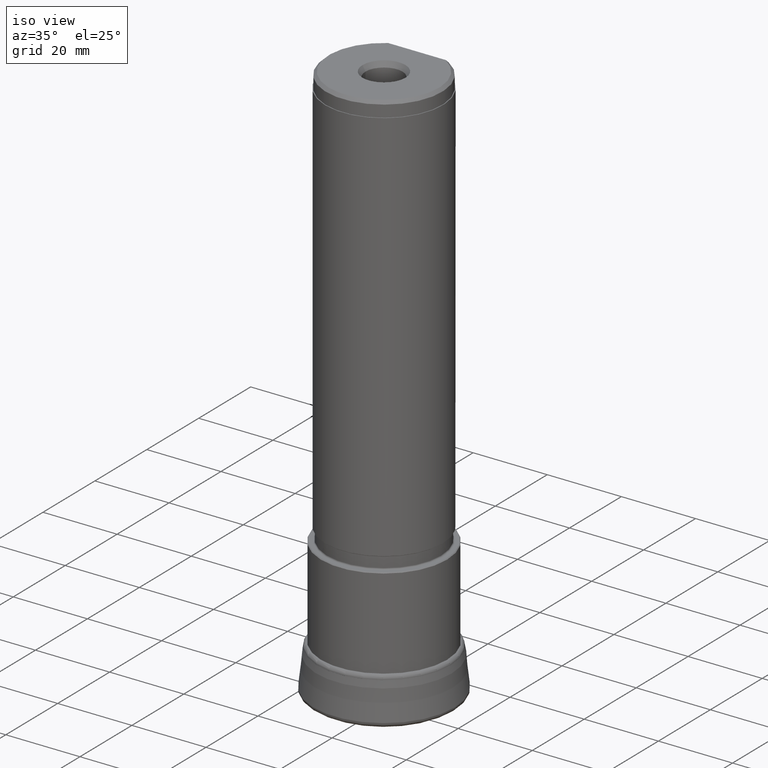
[diagram: clean part render]
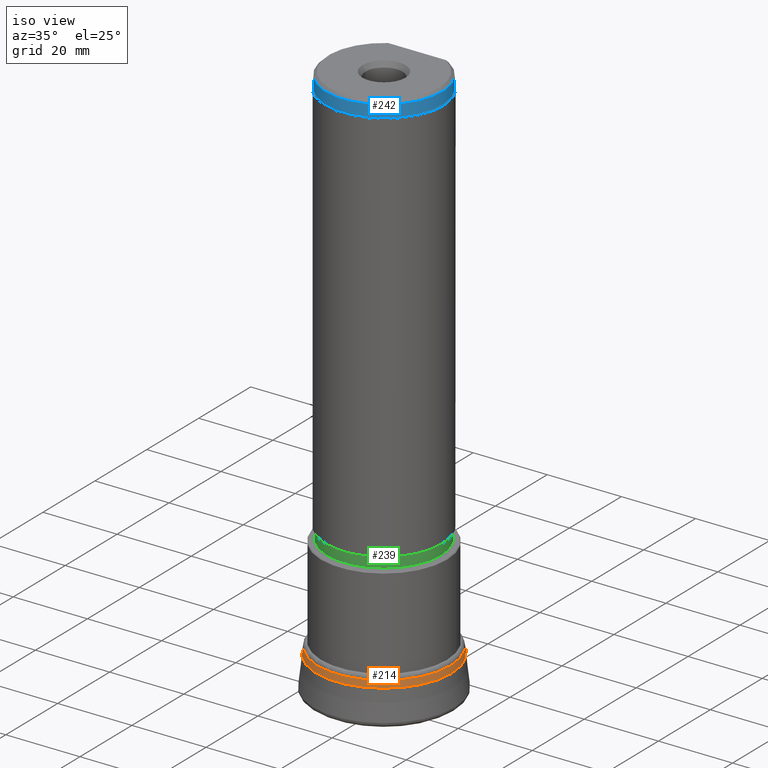
[diagram: same view with three faces highlighted in distinct colors, each labeled with its STEP entity id]
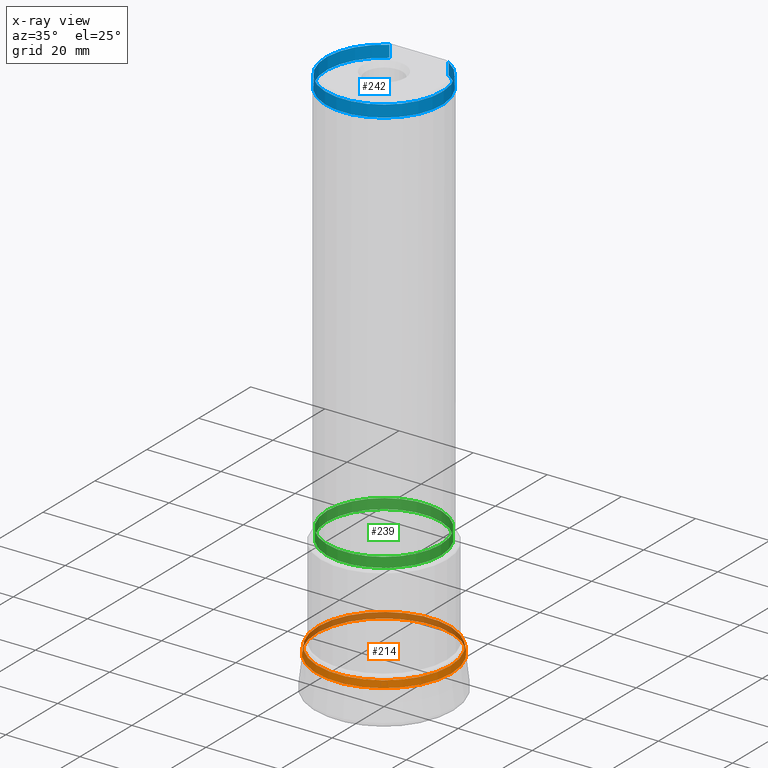
[diagram: x-ray of the same camera — body ghosted, the three highlighted faces saturated]
A machine part, iso view with three faces highlighted in distinct colors.
The next image is the same camera in x-ray (body ghosted, the three faces saturated) — at least one of them is partly hidden behind the body in this view.
Their STEP definitions:

[orange] entity #214 — the highlighted face is a SurfaceOfRevolution surface.
#214=ADVANCED_FACE('',(#379,#380),#271,.F.);
#271=SURFACE_OF_REVOLUTION('',#322,#298);
#298=AXIS1_PLACEMENT('',#1321,#1011);
#322=B_SPLINE_CURVE_WITH_KNOTS('',3,(#1317,#1318,#1319,#1320),
 .UNSPECIFIED.,.F.,.F.,(4,4),(0.,1.),.UNSPECIFIED.);
#379=FACE_BOUND('',#468,.T.);
#380=FACE_BOUND('',#469,.T.);
#468=EDGE_LOOP('',(#569));
#469=EDGE_LOOP('',(#570));
#569=ORIENTED_EDGE('',*,*,#760,.T.);
#570=ORIENTED_EDGE('',*,*,#761,.F.);
#696=VERTEX_POINT('',#1309);
#697=VERTEX_POINT('',#1316);
#760=EDGE_CURVE('',#696,#696,#833,.T.);
#761=EDGE_CURVE('',#697,#697,#834,.T.);
#833=CIRCLE('',#879,18.2190645218184);
#834=CIRCLE('',#880,17.8886795278124);
#879=AXIS2_PLACEMENT_3D('',#1308,#1006,#1007);
#880=AXIS2_PLACEMENT_3D('',#1315,#1009,#1010);
#1006=DIRECTION('',(0.,0.,1.));
#1007=DIRECTION('',(1.,0.,0.));
#1009=DIRECTION('',(0.,0.,1.));
#1010=DIRECTION('',(1.,0.,0.));
#1011=DIRECTION('',(0.,0.,1.));
#1308=CARTESIAN_POINT('',(0.,0.,10.5260621758159));
#1309=CARTESIAN_POINT('',(18.2190645218184,0.,10.5260621758159));
#1315=CARTESIAN_POINT('',(0.,0.,12.2726431788866));
#1316=CARTESIAN_POINT('',(17.8886795278124,0.,12.2726431788866));
#1317=CARTESIAN_POINT('',(-17.2737952084364,4.64982304456582,12.2726431788867));
#1318=CARTESIAN_POINT('',(-17.3407890526163,4.81303944474627,11.6888456324071));
#1319=CARTESIAN_POINT('',(-17.4073841451674,4.98438300860735,11.1072441559266));
#1320=CARTESIAN_POINT('',(-17.47390393636,5.15722728537769,10.5260621758159));
#1321=CARTESIAN_POINT('',(0.,0.,0.));

[blue] entity #242 — the highlighted cylindrical surface (partial cylindrical patch) has radius 15.675 mm, axis along (0, 0, -1).
#111=CYLINDRICAL_SURFACE('',#925,15.675);
#137=FACE_OUTER_BOUND('',#512,.T.);
#166=LINE('',#1489,#186);
#167=LINE('',#1491,#187);
#186=VECTOR('',#1079,1.);
#187=VECTOR('',#1080,1.);
#242=ADVANCED_FACE('',(#137),#111,.T.);
#512=EDGE_LOOP('',(#645,#646,#647,#648));
#645=ORIENTED_EDGE('',*,*,#795,.F.);
#646=ORIENTED_EDGE('',*,*,#775,.T.);
#647=ORIENTED_EDGE('',*,*,#794,.F.);
#648=ORIENTED_EDGE('',*,*,#806,.F.);
#708=VERTEX_POINT('',#1368);
#709=VERTEX_POINT('',#1370);
#723=VERTEX_POINT('',#1490);
#724=VERTEX_POINT('',#1492);
#775=EDGE_CURVE('',#708,#709,#844,.T.);
#794=EDGE_CURVE('',#723,#709,#166,.T.);
#795=EDGE_CURVE('',#708,#724,#167,.T.);
#806=EDGE_CURVE('',#724,#723,#852,.T.);
#844=CIRCLE('',#894,15.675);
#852=CIRCLE('',#923,15.675);
#894=AXIS2_PLACEMENT_3D('',#1378,#1045,#1046);
#923=AXIS2_PLACEMENT_3D('',#1521,#1117,#1118);
#925=AXIS2_PLACEMENT_3D('',#1523,#1121,#1122);
#1045=DIRECTION('',(0.,0.,-1.));
#1046=DIRECTION('',(-1.,0.,0.));
#1079=DIRECTION('',(0.,0.,1.));
#1080=DIRECTION('',(0.,0.,-1.));
#1117=DIRECTION('',(0.,0.,-1.));
#1118=DIRECTION('',(-1.,0.,0.));
#1121=DIRECTION('',(0.,0.,-1.));
#1122=DIRECTION('',(-1.,0.,0.));
#1368=CARTESIAN_POINT('',(7.98721893026604,13.4874,151.6));
#1370=CARTESIAN_POINT('',(-7.98721893026604,13.4874,151.6));
#1378=CARTESIAN_POINT('',(0.,0.,151.6));
#1489=CARTESIAN_POINT('',(-7.98721893026604,13.4874,152.4));
#1490=CARTESIAN_POINT('',(-7.98721893026604,13.4874,148.4));
#1491=CARTESIAN_POINT('',(7.98721893026604,13.4874,152.4));
#1492=CARTESIAN_POINT('',(7.98721893026604,13.4874,148.4));
#1521=CARTESIAN_POINT('',(0.,0.,148.4));
#1523=CARTESIAN_POINT('',(0.,0.,152.4));

[green] entity #239 — the highlighted cylindrical surface (bore or boss wall) has radius 15.375 mm, axis along (0, 0, -1).
#110=CYLINDRICAL_SURFACE('',#919,15.375);
#239=ADVANCED_FACE('',(#409,#410),#110,.T.);
#409=FACE_BOUND('',#507,.T.);
#410=FACE_BOUND('',#508,.T.);
#507=EDGE_LOOP('',(#637));
#508=EDGE_LOOP('',(#638));
#637=ORIENTED_EDGE('',*,*,#769,.T.);
#638=ORIENTED_EDGE('',*,*,#768,.T.);
#704=VERTEX_POINT('',#1356);
#705=VERTEX_POINT('',#1359);
#768=EDGE_CURVE('',#704,#704,#841,.T.);
#769=EDGE_CURVE('',#705,#705,#842,.T.);
#841=CIRCLE('',#888,15.375);
#842=CIRCLE('',#890,15.375);
#888=AXIS2_PLACEMENT_3D('',#1355,#1031,#1032);
#890=AXIS2_PLACEMENT_3D('',#1358,#1035,#1036);
#919=AXIS2_PLACEMENT_3D('',#1516,#1109,#1110);
#1031=DIRECTION('',(0.,0.,-1.));
#1032=DIRECTION('',(1.,0.,0.));
#1035=DIRECTION('',(0.,0.,1.));
#1036=DIRECTION('',(-1.,0.,0.));
#1109=DIRECTION('',(0.,0.,-1.));
#1110=DIRECTION('',(-1.,0.,0.));
#1355=CARTESIAN_POINT('',(0.,0.,41.2));
#1356=CARTESIAN_POINT('',(15.375,0.,41.2));
#1358=CARTESIAN_POINT('',(0.,0.,38.5));
#1359=CARTESIAN_POINT('',(-15.375,0.,38.5));
#1516=CARTESIAN_POINT('',(0.,0.,152.4));